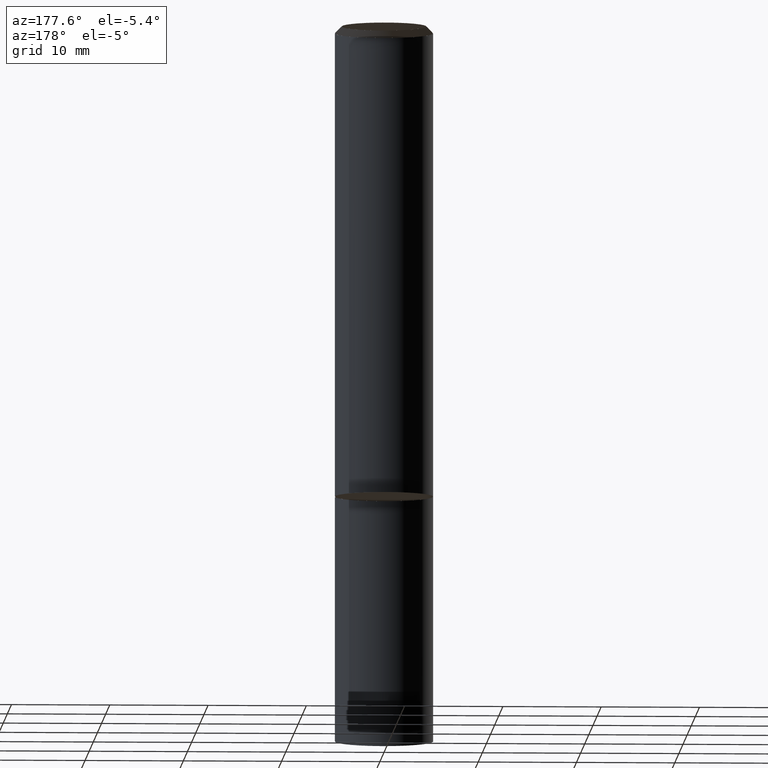
[diagram: clean part render]
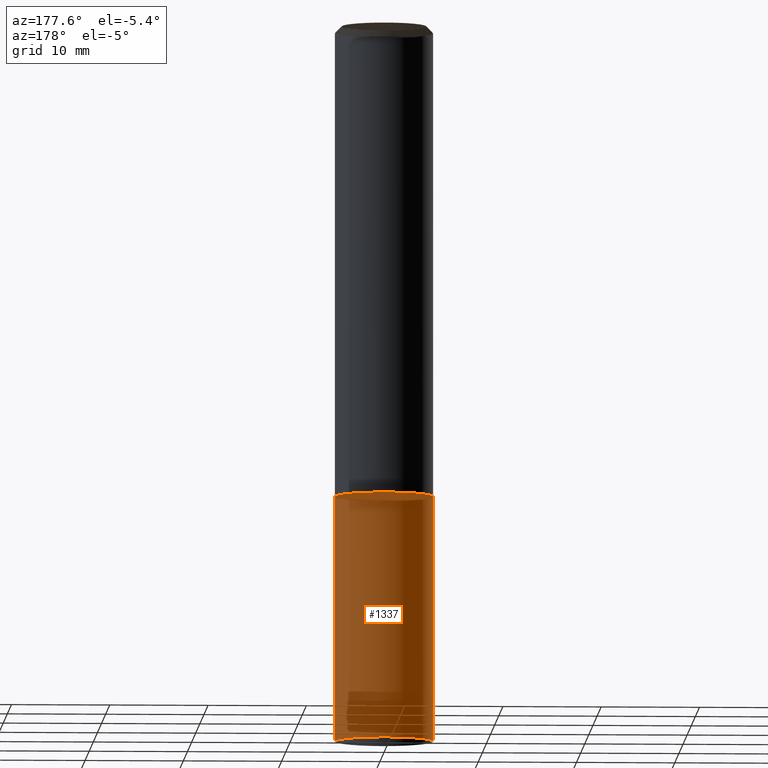
[diagram: same view with one face highlighted and labeled with its STEP entity id]
A machine part, auxiliary view. The second image highlights one B-rep face of the part: STEP entity #1337.
In plain terms, the highlighted face is a freeform B-spline surface patch.
Its self-contained STEP definition (entity closure, byte-faithful):
#410=CARTESIAN_POINT('',(5.0,0.0,-25.0));
#711=CARTESIAN_POINT('',(0.0,5.0,-25.0));
#1012=CARTESIAN_POINT('',(-5.0,0.0,-25.0));
#1265=CARTESIAN_POINT('',(5.0,5.0,-25.0));
#1266=CARTESIAN_POINT('',(-5.0,5.0,-25.0));
#1267=CARTESIAN_POINT('',(5.0,0.0,0.0));
#1268=CARTESIAN_POINT('',(5.0,5.0,0.0));
#1269=CARTESIAN_POINT('',(0.0,5.0,0.0));
#1270=CARTESIAN_POINT('',(-5.0,5.0,0.0));
#1271=CARTESIAN_POINT('',(-5.0,0.0,0.0));
#1318=(
BOUNDED_SURFACE()
B_SPLINE_SURFACE(1,2,(
(#410,#1265,#711,#1266,#1012),
(#1267,#1268,#1269,#1270,#1271)
), .UNSPECIFIED.,.F.,.F.,.F.)
B_SPLINE_SURFACE_WITH_KNOTS((2,2),(3,2,3),(
0.0,1.0),(
0.0,0.5,1.0), .UNSPECIFIED.)
GEOMETRIC_REPRESENTATION_ITEM()
RATIONAL_B_SPLINE_SURFACE(((1.0,0.707106781187,1.0,0.707106781187,1.0),
(1.0,0.707106781187,1.0,0.707106781187,1.0)
))
REPRESENTATION_ITEM('')
SURFACE()
);
#1319=(
BOUNDED_CURVE()
B_SPLINE_CURVE(2,(#1012,#1266,#711,#1265,#410),.UNSPECIFIED.,.F.,.F.)
B_SPLINE_CURVE_WITH_KNOTS((3,2,3),
(0.0,0.5,1.0),.UNSPECIFIED.)
CURVE()
GEOMETRIC_REPRESENTATION_ITEM()
RATIONAL_B_SPLINE_CURVE((1.0,0.707106781187,1.0,0.707106781187,1.0))
REPRESENTATION_ITEM('')
);
#1320=(
BOUNDED_CURVE()
B_SPLINE_CURVE(1,(#410,#1267),.UNSPECIFIED.,.F.,.F.)
B_SPLINE_CURVE_WITH_KNOTS((2,2),
(0.0,1.0),.UNSPECIFIED.)
CURVE()
GEOMETRIC_REPRESENTATION_ITEM()
RATIONAL_B_SPLINE_CURVE((1.0,1.0))
REPRESENTATION_ITEM('')
);
#1321=(
BOUNDED_CURVE()
B_SPLINE_CURVE(2,(#1267,#1268,#1269,#1270,#1271),.UNSPECIFIED.,.F.,.F.)
B_SPLINE_CURVE_WITH_KNOTS((3,2,3),
(0.0,0.5,1.0),.UNSPECIFIED.)
CURVE()
GEOMETRIC_REPRESENTATION_ITEM()
RATIONAL_B_SPLINE_CURVE((1.0,0.707106781187,1.0,0.707106781187,1.0))
REPRESENTATION_ITEM('')
);
#1322=(
BOUNDED_CURVE()
B_SPLINE_CURVE(1,(#1271,#1012),.UNSPECIFIED.,.F.,.F.)
B_SPLINE_CURVE_WITH_KNOTS((2,2),
(0.0,1.0),.UNSPECIFIED.)
CURVE()
GEOMETRIC_REPRESENTATION_ITEM()
RATIONAL_B_SPLINE_CURVE((1.0,1.0))
REPRESENTATION_ITEM('')
);
#1323=VERTEX_POINT('',#410);
#1324=VERTEX_POINT('',#1012);
#1325=VERTEX_POINT('',#1267);
#1326=VERTEX_POINT('',#1271);
#1327=EDGE_CURVE('',#1324,#1323,#1319,.T.);
#1328=EDGE_CURVE('',#1323,#1325,#1320,.T.);
#1329=EDGE_CURVE('',#1325,#1326,#1321,.T.);
#1330=EDGE_CURVE('',#1326,#1324,#1322,.T.);
#1331=ORIENTED_EDGE('',*,*,#1327,.T.);
#1332=ORIENTED_EDGE('',*,*,#1328,.T.);
#1333=ORIENTED_EDGE('',*,*,#1329,.T.);
#1334=ORIENTED_EDGE('',*,*,#1330,.T.);
#1335=EDGE_LOOP('',(#1331,#1332,#1333,#1334));
#1336=FACE_OUTER_BOUND('',#1335,.T.);
#1337=ADVANCED_FACE('',(#1336),#1318,.T.);